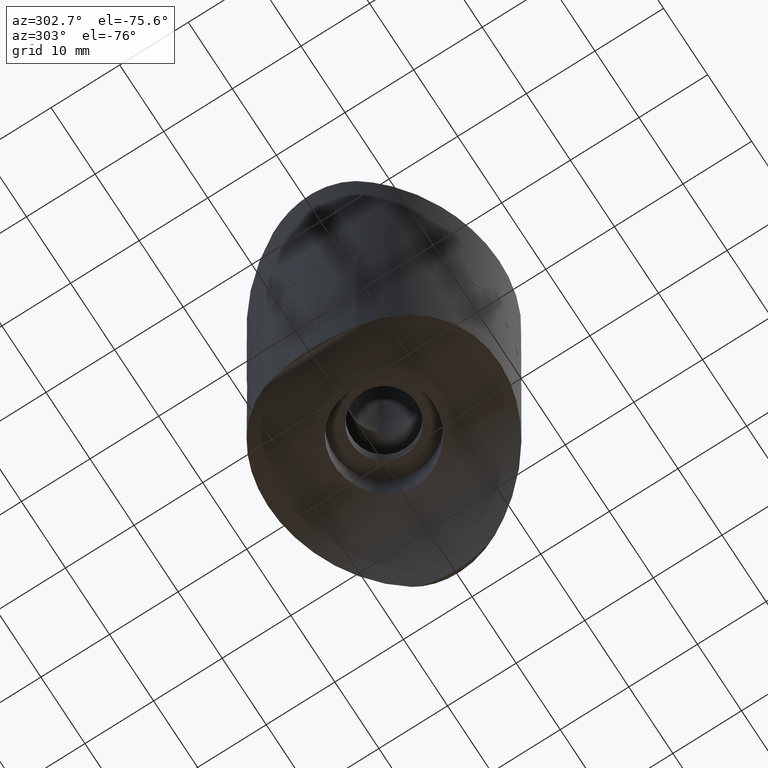
[diagram: clean part render]
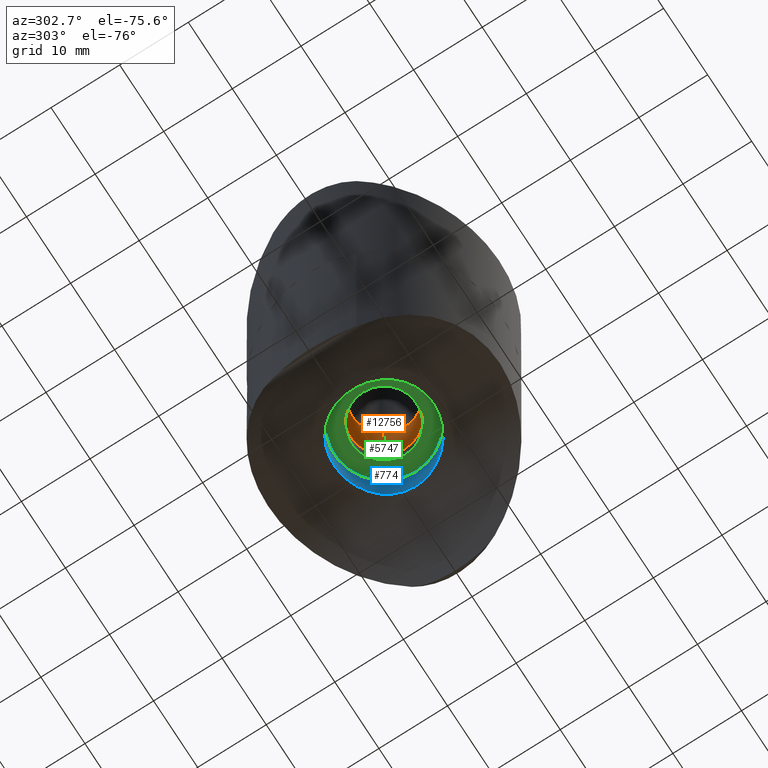
[diagram: same view with three faces highlighted in distinct colors, each labeled with its STEP entity id]
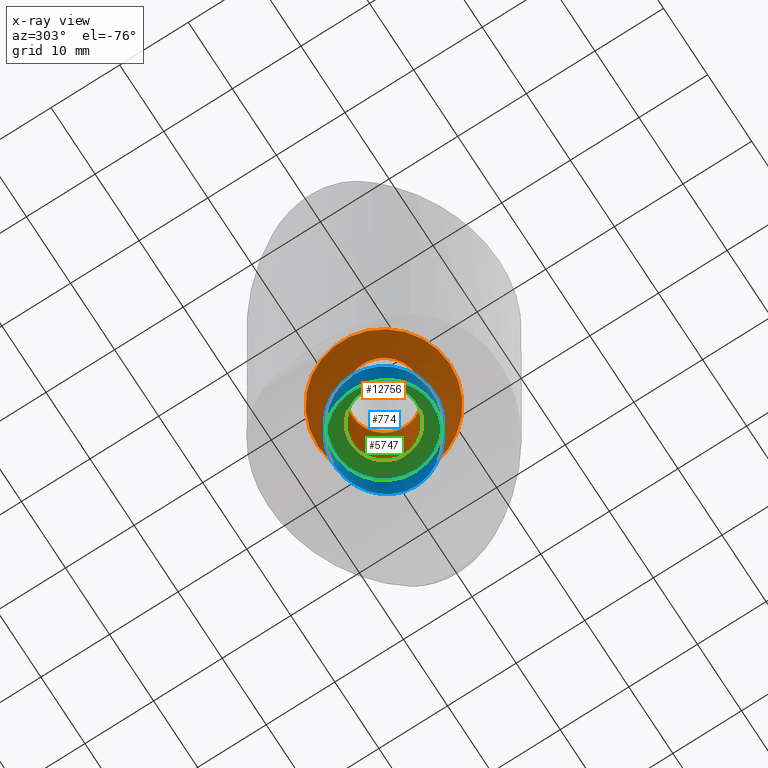
[diagram: x-ray of the same camera — body ghosted, the three highlighted faces saturated]
A machine part, auxiliary view with three faces highlighted in distinct colors.
The next image is the same camera in x-ray (body ghosted, the three faces saturated) — at least one of them is partly hidden behind the body in this view.
Their STEP definitions:

[orange] entity #12756 — the highlighted conical surface has half-angle 45 deg.
#914 = AXIS2_PLACEMENT_3D ( 'NONE', #10228, #5973, #3625 ) ;
#1154 = CIRCLE ( 'NONE', #914, 4.750000000000000000 ) ;
#1246 = CARTESIAN_POINT ( 'NONE',  ( 0.000000000000000000, 9.625000000000000000, -10.49999999999999467 ) ) ;
#2492 = DIRECTION ( 'NONE',  ( -0.000000000000000000, 4.123985650018866956E-18, -1.000000000000000000 ) ) ;
#2871 = EDGE_LOOP ( 'NONE', ( #3907 ) ) ;
#3420 = CARTESIAN_POINT ( 'NONE',  ( 0.000000000000000000, 4.330184932519807915E-17, -10.49999999999999467 ) ) ;
#3480 = EDGE_CURVE ( 'NONE', #3577, #3577, #4977, .T. ) ;
#3577 = VERTEX_POINT ( 'NONE', #1246 ) ;
#3625 = DIRECTION ( 'NONE',  ( 0.000000000000000000, 1.000000000000000000, 0.000000000000000000 ) ) ;
#3907 = ORIENTED_EDGE ( 'NONE', *, *, #3480, .T. ) ;
#4361 = CARTESIAN_POINT ( 'NONE',  ( 0.000000000000000000, 4.750000000000000000, -5.624999999999944933 ) ) ;
#4523 = DIRECTION ( 'NONE',  ( 0.000000000000000000, 1.000000000000000000, 0.000000000000000000 ) ) ;
#4668 = CONICAL_SURFACE ( 'NONE', #9209, 4.750000000000000000, 0.7853981633974431720 ) ;
#4876 = DIRECTION ( 'NONE',  ( 0.000000000000000000, 1.000000000000000000, 0.000000000000000000 ) ) ;
#4977 = CIRCLE ( 'NONE', #13792, 9.625000000000000000 ) ;
#5429 = DIRECTION ( 'NONE',  ( -0.000000000000000000, 4.123985650018866956E-18, -1.000000000000000000 ) ) ;
#5619 = EDGE_LOOP ( 'NONE', ( #7160 ) ) ;
#5714 = FACE_OUTER_BOUND ( 'NONE', #2871, .T. ) ;
#5973 = DIRECTION ( 'NONE',  ( -0.000000000000000000, 4.123985650018866956E-18, -1.000000000000000000 ) ) ;
#6741 = FACE_BOUND ( 'NONE', #5619, .T. ) ;
#6992 = CARTESIAN_POINT ( 'NONE',  ( 0.000000000000000000, 2.319741928135590187E-17, -5.624999999999944933 ) ) ;
#7160 = ORIENTED_EDGE ( 'NONE', *, *, #10532, .F. ) ;
#9209 = AXIS2_PLACEMENT_3D ( 'NONE', #6992, #2492, #4876 ) ;
#10228 = CARTESIAN_POINT ( 'NONE',  ( 0.000000000000000000, 2.319741928135590187E-17, -5.624999999999944933 ) ) ;
#10532 = EDGE_CURVE ( 'NONE', #13044, #13044, #1154, .T. ) ;
#12756 = ADVANCED_FACE ( 'NONE', ( #5714, #6741 ), #4668, .F. ) ;
#13044 = VERTEX_POINT ( 'NONE', #4361 ) ;
#13792 = AXIS2_PLACEMENT_3D ( 'NONE', #3420, #5429, #4523 ) ;

[blue] entity #774 — the highlighted cylindrical surface (bore or boss wall) has radius 7.25 mm, axis along (0, 0, -1).
#30 = CARTESIAN_POINT ( 'NONE',  ( -1.206220008662654886, 7.152956514648704633, 25.04158154498444944 ) ) ;
#72 = CARTESIAN_POINT ( 'NONE',  ( 4.431519699493729370, 5.757206800468981811, 25.58820458345216409 ) ) ;
#237 = B_SPLINE_CURVE_WITH_KNOTS ( 'NONE', 3,
 ( #7871, #12500, #4850, #6968, #1486, #4800, #13708, #13671, #463, #1595, #9266, #10408, #3806, #11497, #4895, #7107, #2610, #6532, #5529, #6581, #8823, #4467, #3278, #14238, #7639, #1100, #8686, #1056, #4408, #9912, #10973, #14198, #7595, #8727, #9818, #11117, #10933, #5427, #2215, #2130, #1140, #8775, #3329, #9959, #4322, #1193, #4362, #12119, #9872, #8869, #12025, #11023, #1002, #2168, #12077, #5476, #13176, #14289, #3227, #3371, #13220, #7679, #6624, #30, #7728, #2272, #12217, #11077, #12166, #13139, #5577, #13278, #6673, #72, #7783, #2320, #10015, #3417, #4520, #5618, #13329, #6139, #9555, #3891, #2843, #3633, #5749, #7999 ),
 .UNSPECIFIED., .T., .F.,
 ( 4, 2, 2, 2, 2, 2, 2, 2, 2, 2, 2, 2, 2, 2, 2, 2, 2, 2, 2, 2, 2, 2, 2, 2, 2, 2, 2, 2, 2, 2, 2, 2, 2, 2, 2, 2, 2, 2, 2, 2, 2, 2, 2, 4 ),
 ( 0.000000000000000000, 0.001433644577314003004, 0.002150466865971005590, 0.002867289154628006875, 0.004300933731942011180, 0.005017756020599013767, 0.005734578309256014618, 0.007168222886570015454, 0.008601867463884017156, 0.009318689752541017141, 0.01003551204119801886, 0.01146915661851201883, 0.01218597890716902055, 0.01290280119582602400, 0.01433644577314002223, 0.01577009035045402394, 0.01720373492776802390, 0.01863737950508202387, 0.01935420179373902386, 0.02007102408239602731, 0.02150466865971002381, 0.02293831323702402378, 0.02365513552568102376, 0.02437195781433802375, 0.02580560239165202718, 0.02652242468030902717, 0.02723924696896602715, 0.02795606925762303061, 0.02867289154628003059, 0.03010653612359403750, 0.03154018070090804093, 0.03297382527822204090, 0.03369064756687904089, 0.03440746985553604087, 0.03584111443285004778, 0.03727475901016404775, 0.03870840358747804771, 0.04014204816479205462, 0.04085887045344905460, 0.04157569274210606153, 0.04300933731942005456, 0.04444298189673405453, 0.04515980418539105451, 0.04587662647404804755 ),
 .UNSPECIFIED. ) ;
#463 = CARTESIAN_POINT ( 'NONE',  ( 6.284216989755239346, -3.646001131596586120, 26.21318057226955744 ) ) ;
#485 = ORIENTED_EDGE ( 'NONE', *, *, #919, .F. ) ;
#774 = ADVANCED_FACE ( 'NONE', ( #9157, #7773 ), #9500, .F. ) ;
#919 = EDGE_CURVE ( 'NONE', #2902, #2902, #4492, .T. ) ;
#1002 = CARTESIAN_POINT ( 'NONE',  ( -6.154477086918456408, 3.839248637186962299, 26.16355981611132009 ) ) ;
#1056 = CARTESIAN_POINT ( 'NONE',  ( -1.892428574287344789, -7.014903934195329427, 25.10002499094520090 ) ) ;
#1099 = CARTESIAN_POINT ( 'NONE',  ( 7.250000000000000000, 0.000000000000000000, 26.63947732653467071 ) ) ;
#1100 = CARTESIAN_POINT ( 'NONE',  ( -0.9536567279642871320, -7.191058151983807711, 25.02529029445535258 ) ) ;
#1140 = CARTESIAN_POINT ( 'NONE',  ( -7.009997843411289509, -1.911926243447778839, 26.52702400991236686 ) ) ;
#1161 = EDGE_CURVE ( 'NONE', #11159, #11159, #237, .T. ) ;
#1193 = CARTESIAN_POINT ( 'NONE',  ( -7.191940080276159719, 0.9468381257532891837, 26.61191699662440513 ) ) ;
#1211 = AXIS2_PLACEMENT_3D ( 'NONE', #11002, #5506, #8711 ) ;
#1486 = CARTESIAN_POINT ( 'NONE',  ( 7.002628067825623859, -1.892901412169225583, 26.52382576842785866 ) ) ;
#1595 = CARTESIAN_POINT ( 'NONE',  ( 5.890442141657536546, -4.233289882853288333, 26.06250676569475999 ) ) ;
#2006 = DIRECTION ( 'NONE',  ( 1.000000000000000000, 0.000000000000000000, 0.000000000000000000 ) ) ;
#2130 = CARTESIAN_POINT ( 'NONE',  ( -6.869696446962265668, -2.364629918321228708, 26.46270023103848246 ) ) ;
#2168 = CARTESIAN_POINT ( 'NONE',  ( -5.893691763476990531, 4.228689597105664610, 26.06372775943460951 ) ) ;
#2215 = CARTESIAN_POINT ( 'NONE',  ( -6.597024996629193616, -3.016154368538861430, 26.34478903538633077 ) ) ;
#2272 = CARTESIAN_POINT ( 'NONE',  ( -0.4859107974962001419, 7.237720314938024480, 25.00529403846662291 ) ) ;
#2320 = CARTESIAN_POINT ( 'NONE',  ( 5.292577952168048050, 4.960501831488994817, 25.85182253006603759 ) ) ;
#2610 = CARTESIAN_POINT ( 'NONE',  ( 3.235647069445164004, -6.505055102152136115, 25.30769353588131665 ) ) ;
#2708 = AXIS2_PLACEMENT_3D ( 'NONE', #14220, #14137, #2006 ) ;
#2843 = CARTESIAN_POINT ( 'NONE',  ( 7.189398415431846878, 0.9659972016149200869, 26.61071641779490449 ) ) ;
#2902 = VERTEX_POINT ( 'NONE', #8822 ) ;
#3227 = CARTESIAN_POINT ( 'NONE',  ( -4.437796910308067666, 5.752261843298136945, 25.58995173191260619 ) ) ;
#3278 = CARTESIAN_POINT ( 'NONE',  ( 0.4891137974550346379, -7.249375180610587499, 25.00026883902162922 ) ) ;
#3329 = CARTESIAN_POINT ( 'NONE',  ( -7.249288605716511569, -0.4883933574990093063, 26.63913824537082675 ) ) ;
#3371 = CARTESIAN_POINT ( 'NONE',  ( -3.659509500026491224, 6.276188967057904300, 25.39730413224363303 ) ) ;
#3417 = CARTESIAN_POINT ( 'NONE',  ( 5.749804130066625163, 4.422363044895904594, 26.01058075090436716 ) ) ;
#3633 = CARTESIAN_POINT ( 'NONE',  ( 7.237684138109774956, 0.4863419437966988723, 26.63358971400829844 ) ) ;
#3806 = CARTESIAN_POINT ( 'NONE',  ( 5.293479903980669476, -4.959436629111730888, 25.85213931805987642 ) ) ;
#3891 = CARTESIAN_POINT ( 'NONE',  ( 7.153553893937990793, 1.202382867433842595, 26.59379261804092209 ) ) ;
#4322 = CARTESIAN_POINT ( 'NONE',  ( -7.238922090878895155, 0.4674521546085589341, 26.63417985456477410 ) ) ;
#4362 = CARTESIAN_POINT ( 'NONE',  ( -7.156127446319826113, 1.187333714639686288, 26.59499988546783911 ) ) ;
#4408 = CARTESIAN_POINT ( 'NONE',  ( -2.349490466729706739, -6.875414876886442705, 25.15859798401258374 ) ) ;
#4467 = CARTESIAN_POINT ( 'NONE',  ( 0.9636397916963056476, -7.201607639733264676, 25.02098335817744612 ) ) ;
#4492 = CIRCLE ( 'NONE', #1211, 7.250000000000000000 ) ;
#4520 = CARTESIAN_POINT ( 'NONE',  ( 5.889366731775145247, 4.234684075643428969, 26.06211442045822935 ) ) ;
#4800 = CARTESIAN_POINT ( 'NONE',  ( 6.862414628211292111, -2.350987257090759730, 26.46053341069558940 ) ) ;
#4850 = CARTESIAN_POINT ( 'NONE',  ( 7.201777549590147487, -0.9611384103698842329, 26.61623455459169207 ) ) ;
#4895 = CARTESIAN_POINT ( 'NONE',  ( 4.435496818888704951, -5.754387200028165950, 25.58922731733813904 ) ) ;
#5427 = CARTESIAN_POINT ( 'NONE',  ( -6.495672709179134863, -3.228703092257248386, 26.30190133129497454 ) ) ;
#5476 = CARTESIAN_POINT ( 'NONE',  ( -5.456315597336293344, 4.779773658194069519, 25.90710032310391142 ) ) ;
#5506 = DIRECTION ( 'NONE',  ( 0.000000000000000000, 0.000000000000000000, 1.000000000000000000 ) ) ;
#5529 = CARTESIAN_POINT ( 'NONE',  ( 2.359795026674000873, -6.859380087639538104, 25.16446733679520520 ) ) ;
#5577 = CARTESIAN_POINT ( 'NONE',  ( 2.351928688558241110, 6.874276990241148688, 25.15905013672751167 ) ) ;
#5618 = CARTESIAN_POINT ( 'NONE',  ( 6.280362781856498877, 3.652164045557515948, 26.21166793982089160 ) ) ;
#5749 = CARTESIAN_POINT ( 'NONE',  ( 7.250000000000000000, 0.2426522457627119933, 26.63947732653466716 ) ) ;
#6139 = CARTESIAN_POINT ( 'NONE',  ( 6.873482217415705975, 2.354918718224003005, 26.46435857658184432 ) ) ;
#6532 = CARTESIAN_POINT ( 'NONE',  ( 2.582786677651940366, -6.778449412495072934, 25.19766032188099913 ) ) ;
#6543 = ORIENTED_EDGE ( 'NONE', *, *, #1161, .F. ) ;
#6581 = CARTESIAN_POINT ( 'NONE',  ( 1.902486007410995938, -7.000019624702958687, 25.10615994419455532 ) ) ;
#6624 = CARTESIAN_POINT ( 'NONE',  ( -1.909735483059632255, 7.010308468516695868, 25.10195530643818174 ) ) ;
#6673 = CARTESIAN_POINT ( 'NONE',  ( 3.650371492537200613, 6.281606876973362397, 25.39523944315417481 ) ) ;
#6968 = CARTESIAN_POINT ( 'NONE',  ( 7.061034692050171202, -1.661628961916938430, 26.55075274866299750 ) ) ;
#7107 = CARTESIAN_POINT ( 'NONE',  ( 3.649548190561962446, -6.282308658684772062, 25.39499595040036084 ) ) ;
#7595 = CARTESIAN_POINT ( 'NONE',  ( -4.796089520777958803, -5.457012219152865384, 25.69324742014707752 ) ) ;
#7639 = CARTESIAN_POINT ( 'NONE',  ( -0.4731811929526817950, -7.238568785239261061, 25.00492898829821087 ) ) ;
#7679 = CARTESIAN_POINT ( 'NONE',  ( -2.362376490325227785, 6.870675669620780468, 25.16053825129078447 ) ) ;
#7728 = CARTESIAN_POINT ( 'NONE',  ( -0.9659986221736295287, 7.189405491579161200, 25.02599706087756815 ) ) ;
#7773 = FACE_OUTER_BOUND ( 'NONE', #12243, .T. ) ;
#7783 = CARTESIAN_POINT ( 'NONE',  ( 4.792961786844774252, 5.460023489855135637, 25.69226896291008799 ) ) ;
#7871 = CARTESIAN_POINT ( 'NONE',  ( 7.250000000000001776, -1.084202172485504434E-16, 26.63947732653467071 ) ) ;
#7999 = CARTESIAN_POINT ( 'NONE',  ( 7.250000000000001776, -1.084202172485504434E-16, 26.63947732653467071 ) ) ;
#8686 = CARTESIAN_POINT ( 'NONE',  ( -1.190670664119227284, -7.155537656130249502, 25.04048140047444093 ) ) ;
#8711 = DIRECTION ( 'NONE',  ( 1.000000000000000000, 0.000000000000000000, 0.000000000000000000 ) ) ;
#8727 = CARTESIAN_POINT ( 'NONE',  ( -5.457786858323821377, -4.795207989275087179, 25.90460282002959858 ) ) ;
#8775 = CARTESIAN_POINT ( 'NONE',  ( -7.201599023381042741, -0.9656620689726242990, 26.61613527485981834 ) ) ;
#8822 = CARTESIAN_POINT ( 'NONE',  ( 7.250000000000000000, 0.000000000000000000, 19.49999999999990408 ) ) ;
#8823 = CARTESIAN_POINT ( 'NONE',  ( 1.667678265546693961, -7.059650328721987833, 25.08107561895074866 ) ) ;
#8869 = CARTESIAN_POINT ( 'NONE',  ( -6.602263208937944938, 3.004854884108322466, 26.34701551272290487 ) ) ;
#8973 = EDGE_LOOP ( 'NONE', ( #485 ) ) ;
#9157 = FACE_OUTER_BOUND ( 'NONE', #8973, .T. ) ;
#9266 = CARTESIAN_POINT ( 'NONE',  ( 5.748691130923715420, -4.423815701176750714, 26.01017554612008098 ) ) ;
#9500 = CYLINDRICAL_SURFACE ( 'NONE', #2708, 7.250000000000000000 ) ;
#9555 = CARTESIAN_POINT ( 'NONE',  ( 7.012290045199207178, 1.901714966943127916, 26.52808509678848736 ) ) ;
#9818 = CARTESIAN_POINT ( 'NONE',  ( -5.754487810619596466, -4.435106019776037911, 26.01057218544490013 ) ) ;
#9872 = CARTESIAN_POINT ( 'NONE',  ( -6.876300369115807776, 2.346299778860041929, 26.46563705559836421 ) ) ;
#9912 = CARTESIAN_POINT ( 'NONE',  ( -3.232678530711880160, -6.507013500803545902, 25.30694114652199644 ) ) ;
#9959 = CARTESIAN_POINT ( 'NONE',  ( -7.250343904083244695, 0.2281810962328683356, 26.63964124603299410 ) ) ;
#10015 = CARTESIAN_POINT ( 'NONE',  ( 5.451857114951218719, 4.784850722138359380, 25.90557452647137993 ) ) ;
#10408 = CARTESIAN_POINT ( 'NONE',  ( 5.450504586210813684, -4.786396852793737722, 25.90511090649457770 ) ) ;
#10933 = CARTESIAN_POINT ( 'NONE',  ( -6.271749419596717168, -3.644646323103839070, 26.21023352558131592 ) ) ;
#10973 = CARTESIAN_POINT ( 'NONE',  ( -3.647523231461759163, -6.283216967721331869, 25.39461716155360094 ) ) ;
#11002 = CARTESIAN_POINT ( 'NONE',  ( 0.000000000000000000, 0.000000000000000000, 19.49999999999990408 ) ) ;
#11023 = CARTESIAN_POINT ( 'NONE',  ( -6.275687458722890355, 3.637878653542170770, 26.21181409391483541 ) ) ;
#11077 = CARTESIAN_POINT ( 'NONE',  ( 0.4712565622533963494, 7.250465984549372855, 24.99979950227562853 ) ) ;
#11117 = CARTESIAN_POINT ( 'NONE',  ( -6.148551095359946039, -3.848800887296434770, 26.16122709414402792 ) ) ;
#11159 = VERTEX_POINT ( 'NONE', #1099 ) ;
#11497 = CARTESIAN_POINT ( 'NONE',  ( 4.798716551207506065, -5.454592940747846619, 25.69404991863372345 ) ) ;
#12025 = CARTESIAN_POINT ( 'NONE',  ( -6.499399634962053973, 3.221213833716214836, 26.30345968075509688 ) ) ;
#12077 = CARTESIAN_POINT ( 'NONE',  ( -5.754116119224452319, 4.416759423806395191, 26.01214731436770222 ) ) ;
#12119 = CARTESIAN_POINT ( 'NONE',  ( -7.015097046224489930, 1.892247061992769375, 26.52937117734956018 ) ) ;
#12166 = CARTESIAN_POINT ( 'NONE',  ( 0.9488585482521061376, 7.203876826102691311, 25.02001323252129339 ) ) ;
#12217 = CARTESIAN_POINT ( 'NONE',  ( -0.2463010454514858727, 7.249761770579301157, 25.00010250223287755 ) ) ;
#12243 = EDGE_LOOP ( 'NONE', ( #6543 ) ) ;
#12500 = CARTESIAN_POINT ( 'NONE',  ( 7.250000000000002665, -0.4853044915254277614, 26.63947732653467071 ) ) ;
#13139 = CARTESIAN_POINT ( 'NONE',  ( 1.896853463475626889, 7.014137210544925338, 25.10035122528833185 ) ) ;
#13176 = CARTESIAN_POINT ( 'NONE',  ( -5.297207865788594816, 4.955550704987957467, 25.85335772755162864 ) ) ;
#13220 = CARTESIAN_POINT ( 'NONE',  ( -3.236524067846660468, 6.504761240615185791, 25.30781549788786933 ) ) ;
#13278 = CARTESIAN_POINT ( 'NONE',  ( 3.227097637635079064, 6.509461846557849540, 25.30596129321776289 ) ) ;
#13329 = CARTESIAN_POINT ( 'NONE',  ( 6.505347094623084914, 3.235870692881699373, 26.30512370645525877 ) ) ;
#13671 = CARTESIAN_POINT ( 'NONE',  ( 6.506850746331281243, -3.232309269541059127, 26.30577292806490064 ) ) ;
#13708 = CARTESIAN_POINT ( 'NONE',  ( 6.780822339225339057, -2.576636541328793495, 26.42427963177747685 ) ) ;
#14137 = DIRECTION ( 'NONE',  ( 0.000000000000000000, 0.000000000000000000, 1.000000000000000000 ) ) ;
#14198 = CARTESIAN_POINT ( 'NONE',  ( -4.427968128431350792, -5.759890575445911765, 25.58724659421149639 ) ) ;
#14220 = CARTESIAN_POINT ( 'NONE',  ( 0.000000000000000000, 0.000000000000000000, 19.49999999999990408 ) ) ;
#14238 = CARTESIAN_POINT ( 'NONE',  ( -0.2305305415976640904, -7.250303364233751324, 24.99986947245147917 ) ) ;
#14289 = CARTESIAN_POINT ( 'NONE',  ( -4.798364704034517203, 5.455251783317848435, 25.69388360925572812 ) ) ;

[green] entity #5747 — the highlighted planar face has unit normal (0, 0, -1).
#469 = FACE_OUTER_BOUND ( 'NONE', #3105, .T. ) ;
#919 = EDGE_CURVE ( 'NONE', #2902, #2902, #4492, .T. ) ;
#1211 = AXIS2_PLACEMENT_3D ( 'NONE', #11002, #5506, #8711 ) ;
#1969 = CARTESIAN_POINT ( 'NONE',  ( 0.000000000000000000, 0.000000000000000000, 19.49999999999990408 ) ) ;
#2065 = DIRECTION ( 'NONE',  ( 1.000000000000000000, 0.000000000000000000, 0.000000000000000000 ) ) ;
#2115 = DIRECTION ( 'NONE',  ( 0.000000000000000000, 0.000000000000000000, 1.000000000000000000 ) ) ;
#2383 = VERTEX_POINT ( 'NONE', #7782 ) ;
#2902 = VERTEX_POINT ( 'NONE', #8822 ) ;
#3105 = EDGE_LOOP ( 'NONE', ( #6460 ) ) ;
#3879 = AXIS2_PLACEMENT_3D ( 'NONE', #1969, #2115, #2065 ) ;
#4492 = CIRCLE ( 'NONE', #1211, 7.250000000000000000 ) ;
#5257 = DIRECTION ( 'NONE',  ( 1.000000000000000000, 0.000000000000000000, 0.000000000000000000 ) ) ;
#5299 = DIRECTION ( 'NONE',  ( -0.000000000000000000, -0.000000000000000000, -1.000000000000000000 ) ) ;
#5506 = DIRECTION ( 'NONE',  ( 0.000000000000000000, 0.000000000000000000, 1.000000000000000000 ) ) ;
#5747 = ADVANCED_FACE ( 'NONE', ( #469, #6148 ), #12886, .T. ) ;
#6148 = FACE_BOUND ( 'NONE', #6731, .T. ) ;
#6460 = ORIENTED_EDGE ( 'NONE', *, *, #919, .T. ) ;
#6475 = ORIENTED_EDGE ( 'NONE', *, *, #6807, .T. ) ;
#6731 = EDGE_LOOP ( 'NONE', ( #6475 ) ) ;
#6807 = EDGE_CURVE ( 'NONE', #2383, #2383, #7738, .T. ) ;
#7362 = AXIS2_PLACEMENT_3D ( 'NONE', #13051, #5299, #5257 ) ;
#7738 = CIRCLE ( 'NONE', #7362, 4.750000000000000000 ) ;
#7782 = CARTESIAN_POINT ( 'NONE',  ( 4.750000000000000000, 0.000000000000000000, 19.49999999999990408 ) ) ;
#8711 = DIRECTION ( 'NONE',  ( 1.000000000000000000, 0.000000000000000000, 0.000000000000000000 ) ) ;
#8822 = CARTESIAN_POINT ( 'NONE',  ( 7.250000000000000000, 0.000000000000000000, 19.49999999999990408 ) ) ;
#11002 = CARTESIAN_POINT ( 'NONE',  ( 0.000000000000000000, 0.000000000000000000, 19.49999999999990408 ) ) ;
#12886 = PLANE ( 'NONE',  #3879 ) ;
#13051 = CARTESIAN_POINT ( 'NONE',  ( 0.000000000000000000, 0.000000000000000000, 19.49999999999990408 ) ) ;